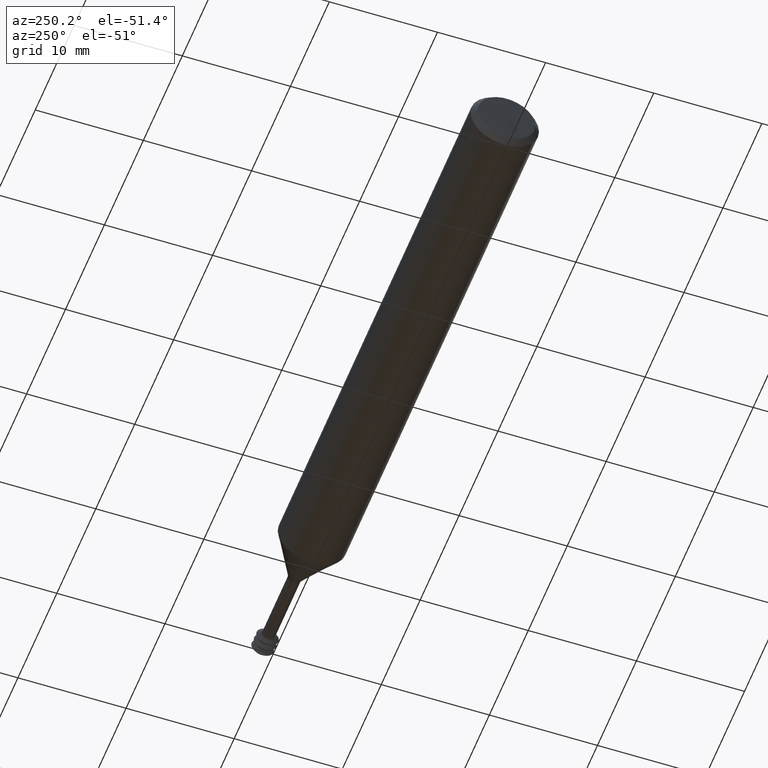
[diagram: clean part render]
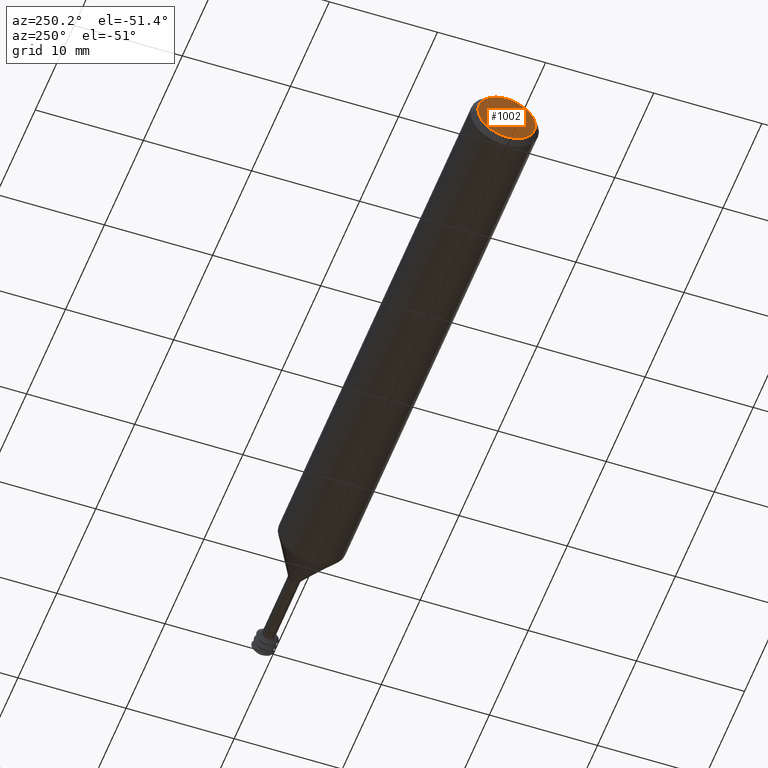
[diagram: same view with one face highlighted and labeled with its STEP entity id]
A machine part, auxiliary view. The second image highlights one B-rep face of the part: STEP entity #1002.
In plain terms, the highlighted planar face has unit normal (1, -0, 0).
Its self-contained STEP definition (entity closure, byte-faithful):
#15 = EDGE_LOOP ( 'NONE', ( #411, #431 ) ) ;
#19 = VERTEX_POINT ( 'NONE', #395 ) ;
#24 = AXIS2_PLACEMENT_3D ( 'NONE', #493, #416, #69 ) ;
#50 = CIRCLE ( 'NONE', #307, 0.1048500000000000126 ) ;
#69 = DIRECTION ( 'NONE',  ( 3.312725351696573770E-18, 1.000000000000000000, 0.000000000000000000 ) ) ;
#138 = DIRECTION ( 'NONE',  ( -3.312725351696573770E-18, -1.000000000000000000, 0.000000000000000000 ) ) ;
#219 = EDGE_CURVE ( 'NONE', #19, #809, #401, .T. ) ;
#278 = CARTESIAN_POINT ( 'NONE',  ( 0.000000000000000000, 1.176669689303133088E-17, 0.000000000000000000 ) ) ;
#295 = CARTESIAN_POINT ( 'NONE',  ( -3.473392531253858003E-19, -0.1048499999999999988, 1.406506848820735372E-17 ) ) ;
#307 = AXIS2_PLACEMENT_3D ( 'NONE', #278, #391, #869 ) ;
#391 = DIRECTION ( 'NONE',  ( -1.000000000000000000, 3.312725351696573770E-18, -0.000000000000000000 ) ) ;
#395 = CARTESIAN_POINT ( 'NONE',  ( 3.473392531253858485E-19, 0.1048500000000000265, 0.000000000000000000 ) ) ;
#401 = CIRCLE ( 'NONE', #925, 0.1048500000000000126 ) ;
#411 = ORIENTED_EDGE ( 'NONE', *, *, #219, .T. ) ;
#416 = DIRECTION ( 'NONE',  ( 1.000000000000000000, -3.312725351696573770E-18, 0.000000000000000000 ) ) ;
#431 = ORIENTED_EDGE ( 'NONE', *, *, #719, .T. ) ;
#493 = CARTESIAN_POINT ( 'NONE',  ( 1.828541742163614243E-19, 0.1048500000000000126, 0.000000000000000000 ) ) ;
#499 = DIRECTION ( 'NONE',  ( -1.000000000000000000, 3.312725351696573770E-18, -0.000000000000000000 ) ) ;
#568 = FACE_OUTER_BOUND ( 'NONE', #15, .T. ) ;
#719 = EDGE_CURVE ( 'NONE', #809, #19, #50, .T. ) ;
#809 = VERTEX_POINT ( 'NONE', #295 ) ;
#869 = DIRECTION ( 'NONE',  ( -3.312725351696573770E-18, -1.000000000000000000, 0.000000000000000000 ) ) ;
#925 = AXIS2_PLACEMENT_3D ( 'NONE', #964, #499, #138 ) ;
#964 = CARTESIAN_POINT ( 'NONE',  ( 0.000000000000000000, 1.176669689303133088E-17, 0.000000000000000000 ) ) ;
#1002 = ADVANCED_FACE ( 'NONE', ( #568 ), #1043, .F. ) ;
#1043 = PLANE ( 'NONE',  #24 ) ;